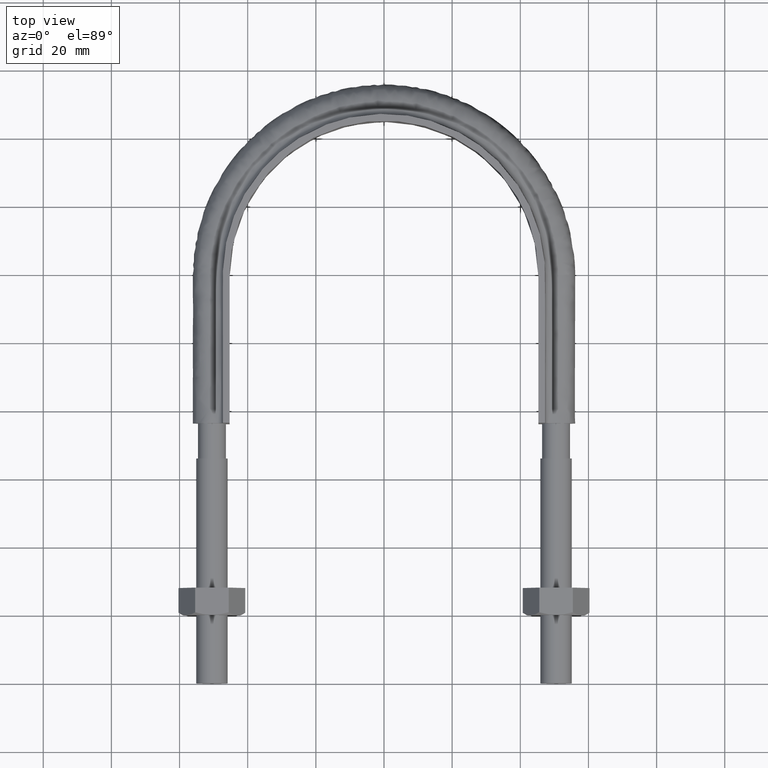
[diagram: clean part render]
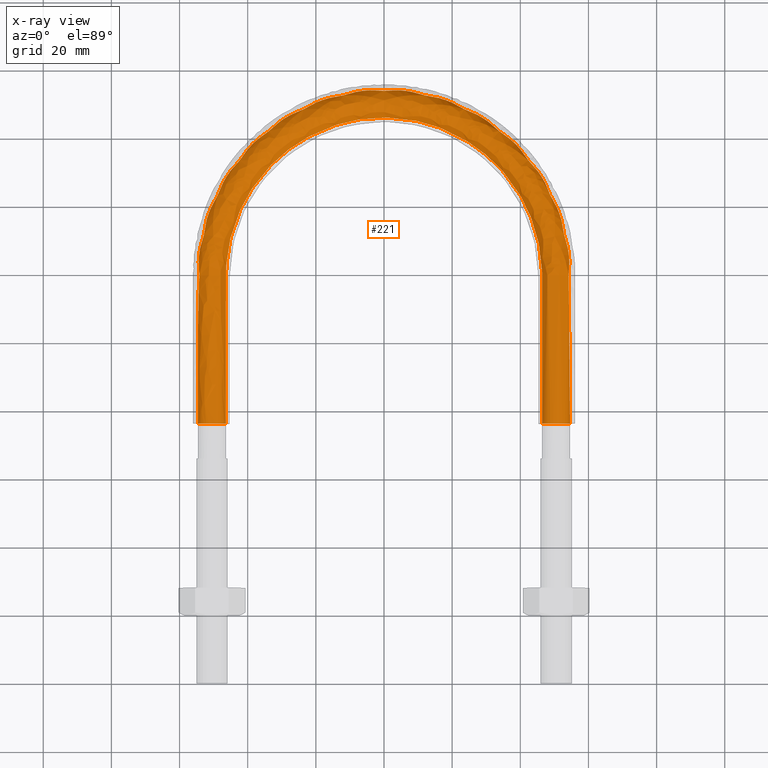
[diagram: x-ray — body ghosted, one internal face saturated and labeled with its STEP entity id]
A machine part, top view, then the same camera in x-ray: the body is ghosted and one INTERNAL B-rep face — a face not visible from any outside direction — is saturated and labeled: STEP entity #221.
In plain terms, the highlighted face is a freeform B-spline surface patch.
Its self-contained STEP definition (entity closure, byte-faithful):
#221 = ADVANCED_FACE( '', ( #302, #303 ), #304, .T. );
#302 = FACE_OUTER_BOUND( '', #474, .T. );
#303 = FACE_OUTER_BOUND( '', #475, .T. );
#304 = B_SPLINE_SURFACE_WITH_KNOTS( '', 3, 3, ( ( #476, #477, #478, #479, #480, #481, #482, #483, #484, #485, #486, #487, #488, #489, #490, #491 ), ( #492, #493, #494, #495, #496, #497, #498, #499, #500, #501, #502, #503, #504, #505, #506, #507 ), ( #508, #509, #510, #511, #512, #513, #514, #515, #516, #517, #518, #519, #520, #521, #522, #523 ), ( #524, #525, #526, #527, #528, #529, #530, #531, #532, #533, #534, #535, #536, #537, #538, #539 ), ( #540, #541, #542, #543, #544, #545, #546, #547, #548, #549, #550, #551, #552, #553, #554, #555 ), ( #556, #557, #558, #559, #560, #561, #562, #563, #564, #565, #566, #567, #568, #569, #570, #571 ), ( #572, #573, #574, #575, #576, #577, #578, #579, #580, #581, #582, #583, #584, #585, #586, #587 ), ( #588, #589, #590, #591, #592, #593, #594, #595, #596, #597, #598, #599, #600, #601, #602, #603 ), ( #604, #605, #606, #607, #608, #609, #610, #611, #612, #613, #614, #615, #616, #617, #618, #619 ), ( #620, #621, #622, #623, #624, #625, #626, #627, #628, #629, #630, #631, #632, #633, #634, #635 ) ), .UNSPECIFIED., .T., .F., .F., ( 2, 1, 1, 1, 1, 1, 1, 1, 1, 1, 1, 2 ), ( 4, 3, 1, 1, 1, 1, 1, 1, 3, 4 ), ( -0.285714285714286, -0.142857142857143, 0.000000000000000, 0.142857142857143, 0.285714285714286, 0.428571428571429, 0.571428571428571, 0.714285714285714, 0.857142857142857, 1.00000000000000, 1.14285714285714, 1.28571428571429 ), ( 0.000000000000000, 1.00000000000000, 2.00000000000000, 3.00000000000000, 4.00000000000000, 5.00000000000000, 6.00000000000000, 7.00000000000000, 8.00000000000000, 9.00000000000000 ), .UNSPECIFIED. );
#474 = EDGE_LOOP( '', ( #1470, #1471, #1472, #1473, #1474, #1475, #1476 ) );
#475 = EDGE_LOOP( '', ( #1477, #1478, #1479, #1480, #1481, #1482, #1483 ) );
#476 = CARTESIAN_POINT( '', ( 47.5768231851220, 73.1000000000000, -3.66554778583225 ) );
#477 = CARTESIAN_POINT( '', ( 47.5768231851220, 88.6333333333333, -3.66554778583225 ) );
#478 = CARTESIAN_POINT( '', ( 47.5768231851220, 104.166666666667, -3.66554778583225 ) );
#479 = CARTESIAN_POINT( '', ( 47.5768231851220, 119.700000000000, -3.66554778583225 ) );
#480 = CARTESIAN_POINT( '', ( 47.5768231851220, 126.808240896427, -3.66554778583225 ) );
#481 = CARTESIAN_POINT( '', ( 44.3285383008820, 141.051017216330, -3.66554778583224 ) );
#482 = CARTESIAN_POINT( '', ( 30.6763003101874, 158.165938031577, -3.66554778583225 ) );
#483 = CARTESIAN_POINT( '', ( 10.9482448229265, 167.667579869022, -3.66554778583225 ) );
#484 = CARTESIAN_POINT( '', ( -10.9482448229264, 167.667579869022, -3.66554778583225 ) );
#485 = CARTESIAN_POINT( '', ( -30.6763003101874, 158.165938031577, -3.66554778583225 ) );
#486 = CARTESIAN_POINT( '', ( -44.3285383008820, 141.051017216330, -3.66554778583225 ) );
#487 = CARTESIAN_POINT( '', ( -47.5768231851220, 126.808240896427, -3.66554778583225 ) );
#488 = CARTESIAN_POINT( '', ( -47.5768231851220, 119.700000000000, -3.66554778583225 ) );
#489 = CARTESIAN_POINT( '', ( -47.5768231851220, 104.166666666667, -3.66554778583225 ) );
#490 = CARTESIAN_POINT( '', ( -47.5768231851220, 88.6333333333333, -3.66554778583225 ) );
#491 = CARTESIAN_POINT( '', ( -47.5768231851220, 73.1000000000000, -3.66554778583225 ) );
#492 = CARTESIAN_POINT( '', ( 45.8115884074390, 73.1000000000000, 0.000000000000000 ) );
#493 = CARTESIAN_POINT( '', ( 45.8115884074390, 88.6333333333333, 0.000000000000000 ) );
#494 = CARTESIAN_POINT( '', ( 45.8115884074390, 104.166666666667, 0.000000000000000 ) );
#495 = CARTESIAN_POINT( '', ( 45.8115884074390, 119.700000000000, 0.000000000000000 ) );
#496 = CARTESIAN_POINT( '', ( 45.8115884074390, 126.539638683912, 0.000000000000000 ) );
#497 = CARTESIAN_POINT( '', ( 42.6838240847164, 140.261089198707, 0.000000000000000 ) );
#498 = CARTESIAN_POINT( '', ( 29.5381227579056, 156.738149417462, 0.000000000000000 ) );
#499 = CARTESIAN_POINT( '', ( 10.5420339575894, 165.887965604265, 0.000000000000000 ) );
#500 = CARTESIAN_POINT( '', ( -10.5420339575893, 165.887965604265, 0.000000000000000 ) );
#501 = CARTESIAN_POINT( '', ( -29.5381227579055, 156.738149417462, 0.000000000000000 ) );
#502 = CARTESIAN_POINT( '', ( -42.6838240847164, 140.261089198707, 0.000000000000000 ) );
#503 = CARTESIAN_POINT( '', ( -45.8115884074390, 126.539638683912, 0.000000000000000 ) );
#504 = CARTESIAN_POINT( '', ( -45.8115884074390, 119.700000000000, 0.000000000000000 ) );
#505 = CARTESIAN_POINT( '', ( -45.8115884074390, 104.166666666667, 0.000000000000000 ) );
#506 = CARTESIAN_POINT( '', ( -45.8115884074390, 88.6333333333333, 0.000000000000000 ) );
#507 = CARTESIAN_POINT( '', ( -45.8115884074390, 73.1000000000000, 0.000000000000000 ) );
#508 = CARTESIAN_POINT( '', ( 47.5768231851220, 73.1000000000000, 3.66554778583225 ) );
#509 = CARTESIAN_POINT( '', ( 47.5768231851220, 88.6333333333333, 3.66554778583225 ) );
#510 = CARTESIAN_POINT( '', ( 47.5768231851220, 104.166666666667, 3.66554778583225 ) );
#511 = CARTESIAN_POINT( '', ( 47.5768231851220, 119.700000000000, 3.66554778583225 ) );
#512 = CARTESIAN_POINT( '', ( 47.5768231851220, 126.808240896427, 3.66554778583225 ) );
#513 = CARTESIAN_POINT( '', ( 44.3285383008820, 141.051017216330, 3.66554778583224 ) );
#514 = CARTESIAN_POINT( '', ( 30.6763003101874, 158.165938031577, 3.66554778583225 ) );
#515 = CARTESIAN_POINT( '', ( 10.9482448229265, 167.667579869022, 3.66554778583225 ) );
#516 = CARTESIAN_POINT( '', ( -10.9482448229264, 167.667579869022, 3.66554778583225 ) );
#517 = CARTESIAN_POINT( '', ( -30.6763003101874, 158.165938031577, 3.66554778583225 ) );
#518 = CARTESIAN_POINT( '', ( -44.3285383008820, 141.051017216330, 3.66554778583225 ) );
#519 = CARTESIAN_POINT( '', ( -47.5768231851220, 126.808240896427, 3.66554778583225 ) );
#520 = CARTESIAN_POINT( '', ( -47.5768231851220, 119.700000000000, 3.66554778583225 ) );
#521 = CARTESIAN_POINT( '', ( -47.5768231851219, 104.166666666667, 3.66554778583225 ) );
#522 = CARTESIAN_POINT( '', ( -47.5768231851220, 88.6333333333333, 3.66554778583225 ) );
#523 = CARTESIAN_POINT( '', ( -47.5768231851220, 73.1000000000000, 3.66554778583225 ) );
#524 = CARTESIAN_POINT( '', ( 51.5432697263483, 73.1000000000000, 4.57086332538454 ) );
#525 = CARTESIAN_POINT( '', ( 51.5432697263483, 88.6333333333333, 4.57086332538454 ) );
#526 = CARTESIAN_POINT( '', ( 51.5432697263483, 104.166666666667, 4.57086332538454 ) );
#527 = CARTESIAN_POINT( '', ( 51.5432697263483, 119.700000000000, 4.57086332538454 ) );
#528 = CARTESIAN_POINT( '', ( 51.5432697263483, 127.411784589462, 4.57086332538454 ) );
#529 = CARTESIAN_POINT( '', ( 48.0241775985503, 142.825969360335, 4.57086332538453 ) );
#530 = CARTESIAN_POINT( '', ( 33.2337620555738, 161.374149925913, 4.57086332538454 ) );
#531 = CARTESIAN_POINT( '', ( 11.8609923521473, 171.666336824417, 4.57086332538454 ) );
#532 = CARTESIAN_POINT( '', ( -11.8609923521472, 171.666336824417, 4.57086332538454 ) );
#533 = CARTESIAN_POINT( '', ( -33.2337620555738, 161.374149925913, 4.57086332538454 ) );
#534 = CARTESIAN_POINT( '', ( -48.0241775985503, 142.825969360335, 4.57086332538453 ) );
#535 = CARTESIAN_POINT( '', ( -51.5432697263483, 127.411784589462, 4.57086332538454 ) );
#536 = CARTESIAN_POINT( '', ( -51.5432697263483, 119.700000000000, 4.57086332538454 ) );
#537 = CARTESIAN_POINT( '', ( -51.5432697263483, 104.166666666667, 4.57086332538454 ) );
#538 = CARTESIAN_POINT( '', ( -51.5432697263483, 88.6333333333333, 4.57086332538454 ) );
#539 = CARTESIAN_POINT( '', ( -51.5432697263483, 73.1000000000000, 4.57086332538454 ) );
#540 = CARTESIAN_POINT( '', ( 54.7241128848103, 73.1000000000000, 2.03422555230246 ) );
#541 = CARTESIAN_POINT( '', ( 54.7241128848103, 88.6333333333333, 2.03422555230246 ) );
#542 = CARTESIAN_POINT( '', ( 54.7241128848103, 104.166666666667, 2.03422555230246 ) );
#543 = CARTESIAN_POINT( '', ( 54.7241128848103, 119.700000000000, 2.03422555230246 ) );
#544 = CARTESIAN_POINT( '', ( 54.7241128848103, 127.895789052114, 2.03422555230246 ) );
#545 = CARTESIAN_POINT( '', ( 50.9878502092738, 144.249370463859, 2.03422555230246 ) );
#546 = CARTESIAN_POINT( '', ( 35.2846871370765, 163.946936108439, 2.03422555230247 ) );
#547 = CARTESIAN_POINT( '', ( 12.5929590390921, 174.873090923261, 2.03422555230247 ) );
#548 = CARTESIAN_POINT( '', ( -12.5929590390920, 174.873090923261, 2.03422555230246 ) );
#549 = CARTESIAN_POINT( '', ( -35.2846871370765, 163.946936108438, 2.03422555230246 ) );
#550 = CARTESIAN_POINT( '', ( -50.9878502092738, 144.249370463859, 2.03422555230246 ) );
#551 = CARTESIAN_POINT( '', ( -54.7241128848102, 127.895789052114, 2.03422555230246 ) );
#552 = CARTESIAN_POINT( '', ( -54.7241128848102, 119.700000000000, 2.03422555230246 ) );
#553 = CARTESIAN_POINT( '', ( -54.7241128848102, 104.166666666667, 2.03422555230246 ) );
#554 = CARTESIAN_POINT( '', ( -54.7241128848102, 88.6333333333333, 2.03422555230246 ) );
#555 = CARTESIAN_POINT( '', ( -54.7241128848102, 73.1000000000000, 2.03422555230246 ) );
#556 = CARTESIAN_POINT( '', ( 54.7241128848103, 73.1000000000000, -2.03422555230246 ) );
#557 = CARTESIAN_POINT( '', ( 54.7241128848103, 88.6333333333333, -2.03422555230246 ) );
#558 = CARTESIAN_POINT( '', ( 54.7241128848103, 104.166666666667, -2.03422555230246 ) );
#559 = CARTESIAN_POINT( '', ( 54.7241128848103, 119.700000000000, -2.03422555230246 ) );
#560 = CARTESIAN_POINT( '', ( 54.7241128848103, 127.895789052114, -2.03422555230246 ) );
#561 = CARTESIAN_POINT( '', ( 50.9878502092738, 144.249370463859, -2.03422555230246 ) );
#562 = CARTESIAN_POINT( '', ( 35.2846871370765, 163.946936108439, -2.03422555230246 ) );
#563 = CARTESIAN_POINT( '', ( 12.5929590390921, 174.873090923261, -2.03422555230246 ) );
#564 = CARTESIAN_POINT( '', ( -12.5929590390920, 174.873090923261, -2.03422555230246 ) );
#565 = CARTESIAN_POINT( '', ( -35.2846871370765, 163.946936108438, -2.03422555230246 ) );
#566 = CARTESIAN_POINT( '', ( -50.9878502092738, 144.249370463859, -2.03422555230246 ) );
#567 = CARTESIAN_POINT( '', ( -54.7241128848102, 127.895789052114, -2.03422555230246 ) );
#568 = CARTESIAN_POINT( '', ( -54.7241128848102, 119.700000000000, -2.03422555230246 ) );
#569 = CARTESIAN_POINT( '', ( -54.7241128848102, 104.166666666667, -2.03422555230246 ) );
#570 = CARTESIAN_POINT( '', ( -54.7241128848102, 88.6333333333333, -2.03422555230246 ) );
#571 = CARTESIAN_POINT( '', ( -54.7241128848102, 73.1000000000000, -2.03422555230246 ) );
#572 = CARTESIAN_POINT( '', ( 51.5432697263483, 73.1000000000000, -4.57086332538454 ) );
#573 = CARTESIAN_POINT( '', ( 51.5432697263483, 88.6333333333333, -4.57086332538454 ) );
#574 = CARTESIAN_POINT( '', ( 51.5432697263483, 104.166666666667, -4.57086332538454 ) );
#575 = CARTESIAN_POINT( '', ( 51.5432697263483, 119.700000000000, -4.57086332538454 ) );
#576 = CARTESIAN_POINT( '', ( 51.5432697263483, 127.411784589462, -4.57086332538454 ) );
#577 = CARTESIAN_POINT( '', ( 48.0241775985503, 142.825969360335, -4.57086332538453 ) );
#578 = CARTESIAN_POINT( '', ( 33.2337620555738, 161.374149925913, -4.57086332538454 ) );
#579 = CARTESIAN_POINT( '', ( 11.8609923521473, 171.666336824417, -4.57086332538454 ) );
#580 = CARTESIAN_POINT( '', ( -11.8609923521472, 171.666336824417, -4.57086332538454 ) );
#581 = CARTESIAN_POINT( '', ( -33.2337620555738, 161.374149925913, -4.57086332538454 ) );
#582 = CARTESIAN_POINT( '', ( -48.0241775985503, 142.825969360335, -4.57086332538453 ) );
#583 = CARTESIAN_POINT( '', ( -51.5432697263483, 127.411784589462, -4.57086332538454 ) );
#584 = CARTESIAN_POINT( '', ( -51.5432697263483, 119.700000000000, -4.57086332538454 ) );
#585 = CARTESIAN_POINT( '', ( -51.5432697263483, 104.166666666667, -4.57086332538454 ) );
#586 = CARTESIAN_POINT( '', ( -51.5432697263483, 88.6333333333333, -4.57086332538454 ) );
#587 = CARTESIAN_POINT( '', ( -51.5432697263483, 73.1000000000000, -4.57086332538454 ) );
#588 = CARTESIAN_POINT( '', ( 47.5768231851220, 73.1000000000000, -3.66554778583225 ) );
#589 = CARTESIAN_POINT( '', ( 47.5768231851220, 88.6333333333333, -3.66554778583225 ) );
#590 = CARTESIAN_POINT( '', ( 47.5768231851220, 104.166666666667, -3.66554778583225 ) );
#591 = CARTESIAN_POINT( '', ( 47.5768231851220, 119.700000000000, -3.66554778583225 ) );
#592 = CARTESIAN_POINT( '', ( 47.5768231851220, 126.808240896427, -3.66554778583225 ) );
#593 = CARTESIAN_POINT( '', ( 44.3285383008820, 141.051017216330, -3.66554778583224 ) );
#594 = CARTESIAN_POINT( '', ( 30.6763003101874, 158.165938031577, -3.66554778583225 ) );
#595 = CARTESIAN_POINT( '', ( 10.9482448229265, 167.667579869022, -3.66554778583225 ) );
#596 = CARTESIAN_POINT( '', ( -10.9482448229264, 167.667579869022, -3.66554778583225 ) );
#597 = CARTESIAN_POINT( '', ( -30.6763003101874, 158.165938031577, -3.66554778583225 ) );
#598 = CARTESIAN_POINT( '', ( -44.3285383008820, 141.051017216330, -3.66554778583225 ) );
#599 = CARTESIAN_POINT( '', ( -47.5768231851220, 126.808240896427, -3.66554778583225 ) );
#600 = CARTESIAN_POINT( '', ( -47.5768231851220, 119.700000000000, -3.66554778583225 ) );
#601 = CARTESIAN_POINT( '', ( -47.5768231851220, 104.166666666667, -3.66554778583225 ) );
#602 = CARTESIAN_POINT( '', ( -47.5768231851220, 88.6333333333333, -3.66554778583225 ) );
#603 = CARTESIAN_POINT( '', ( -47.5768231851220, 73.1000000000000, -3.66554778583225 ) );
#604 = CARTESIAN_POINT( '', ( 45.8115884074390, 73.1000000000000, 0.000000000000000 ) );
#605 = CARTESIAN_POINT( '', ( 45.8115884074390, 88.6333333333333, 0.000000000000000 ) );
#606 = CARTESIAN_POINT( '', ( 45.8115884074390, 104.166666666667, 0.000000000000000 ) );
#607 = CARTESIAN_POINT( '', ( 45.8115884074390, 119.700000000000, 0.000000000000000 ) );
#608 = CARTESIAN_POINT( '', ( 45.8115884074390, 126.539638683912, 0.000000000000000 ) );
#609 = CARTESIAN_POINT( '', ( 42.6838240847164, 140.261089198707, 0.000000000000000 ) );
#610 = CARTESIAN_POINT( '', ( 29.5381227579056, 156.738149417462, 0.000000000000000 ) );
#611 = CARTESIAN_POINT( '', ( 10.5420339575894, 165.887965604265, 0.000000000000000 ) );
#612 = CARTESIAN_POINT( '', ( -10.5420339575893, 165.887965604265, 0.000000000000000 ) );
#613 = CARTESIAN_POINT( '', ( -29.5381227579055, 156.738149417462, 0.000000000000000 ) );
#614 = CARTESIAN_POINT( '', ( -42.6838240847164, 140.261089198707, 0.000000000000000 ) );
#615 = CARTESIAN_POINT( '', ( -45.8115884074390, 126.539638683912, 0.000000000000000 ) );
#616 = CARTESIAN_POINT( '', ( -45.8115884074390, 119.700000000000, 0.000000000000000 ) );
#617 = CARTESIAN_POINT( '', ( -45.8115884074390, 104.166666666667, 0.000000000000000 ) );
#618 = CARTESIAN_POINT( '', ( -45.8115884074390, 88.6333333333333, 0.000000000000000 ) );
#619 = CARTESIAN_POINT( '', ( -45.8115884074390, 73.1000000000000, 0.000000000000000 ) );
#620 = CARTESIAN_POINT( '', ( 47.5768231851220, 73.1000000000000, 3.66554778583225 ) );
#621 = CARTESIAN_POINT( '', ( 47.5768231851220, 88.6333333333333, 3.66554778583225 ) );
#622 = CARTESIAN_POINT( '', ( 47.5768231851220, 104.166666666667, 3.66554778583225 ) );
#623 = CARTESIAN_POINT( '', ( 47.5768231851220, 119.700000000000, 3.66554778583225 ) );
#624 = CARTESIAN_POINT( '', ( 47.5768231851220, 126.808240896427, 3.66554778583225 ) );
#625 = CARTESIAN_POINT( '', ( 44.3285383008820, 141.051017216330, 3.66554778583224 ) );
#626 = CARTESIAN_POINT( '', ( 30.6763003101874, 158.165938031577, 3.66554778583225 ) );
#627 = CARTESIAN_POINT( '', ( 10.9482448229265, 167.667579869022, 3.66554778583225 ) );
#628 = CARTESIAN_POINT( '', ( -10.9482448229264, 167.667579869022, 3.66554778583225 ) );
#629 = CARTESIAN_POINT( '', ( -30.6763003101874, 158.165938031577, 3.66554778583225 ) );
#630 = CARTESIAN_POINT( '', ( -44.3285383008820, 141.051017216330, 3.66554778583225 ) );
#631 = CARTESIAN_POINT( '', ( -47.5768231851220, 126.808240896427, 3.66554778583225 ) );
#632 = CARTESIAN_POINT( '', ( -47.5768231851220, 119.700000000000, 3.66554778583225 ) );
#633 = CARTESIAN_POINT( '', ( -47.5768231851219, 104.166666666667, 3.66554778583225 ) );
#634 = CARTESIAN_POINT( '', ( -47.5768231851220, 88.6333333333333, 3.66554778583225 ) );
#635 = CARTESIAN_POINT( '', ( -47.5768231851220, 73.1000000000000, 3.66554778583225 ) );
#1470 = ORIENTED_EDGE( '', *, *, #2001, .T. );
#1471 = ORIENTED_EDGE( '', *, *, #2002, .T. );
#1472 = ORIENTED_EDGE( '', *, *, #2003, .T. );
#1473 = ORIENTED_EDGE( '', *, *, #2004, .T. );
#1474 = ORIENTED_EDGE( '', *, *, #2005, .T. );
#1475 = ORIENTED_EDGE( '', *, *, #2006, .T. );
#1476 = ORIENTED_EDGE( '', *, *, #2007, .T. );
#1477 = ORIENTED_EDGE( '', *, *, #2008, .T. );
#1478 = ORIENTED_EDGE( '', *, *, #2009, .T. );
#1479 = ORIENTED_EDGE( '', *, *, #2010, .T. );
#1480 = ORIENTED_EDGE( '', *, *, #2011, .T. );
#1481 = ORIENTED_EDGE( '', *, *, #2012, .T. );
#1482 = ORIENTED_EDGE( '', *, *, #2013, .T. );
#1483 = ORIENTED_EDGE( '', *, *, #2014, .T. );
#2001 = EDGE_CURVE( '', #2143, #2154, #2163, .T. );
#2002 = EDGE_CURVE( '', #2154, #2152, #2164, .T. );
#2003 = EDGE_CURVE( '', #2152, #2150, #2165, .T. );
#2004 = EDGE_CURVE( '', #2150, #2148, #2166, .T. );
#2005 = EDGE_CURVE( '', #2148, #2146, #2167, .T. );
#2006 = EDGE_CURVE( '', #2146, #2144, #2168, .T. );
#2007 = EDGE_CURVE( '', #2144, #2143, #2169, .T. );
#2008 = EDGE_CURVE( '', #2170, #2171, #2172, .T. );
#2009 = EDGE_CURVE( '', #2171, #2173, #2174, .T. );
#2010 = EDGE_CURVE( '', #2173, #2175, #2176, .T. );
#2011 = EDGE_CURVE( '', #2175, #2177, #2178, .T. );
#2012 = EDGE_CURVE( '', #2177, #2179, #2180, .T. );
#2013 = EDGE_CURVE( '', #2179, #2181, #2182, .T. );
#2014 = EDGE_CURVE( '', #2181, #2170, #2183, .T. );
#2143 = VERTEX_POINT( '', #2393 );
#2144 = VERTEX_POINT( '', #2394 );
#2146 = VERTEX_POINT( '', #2396 );
#2148 = VERTEX_POINT( '', #2398 );
#2150 = VERTEX_POINT( '', #2400 );
#2152 = VERTEX_POINT( '', #2402 );
#2154 = VERTEX_POINT( '', #2404 );
#2163 = B_SPLINE_CURVE_WITH_KNOTS( '', 3, ( #2413, #2414, #2415, #2416 ), .UNSPECIFIED., .F., .F., ( 4, 4 ), ( 5.20417042793042E-017, 0.00365969768494583 ), .UNSPECIFIED. );
#2164 = B_SPLINE_CURVE_WITH_KNOTS( '', 3, ( #2417, #2418, #2419, #2420 ), .UNSPECIFIED., .F., .F., ( 4, 4 ), ( 0.00365969768494583, 0.00731437302338643 ), .UNSPECIFIED. );
#2165 = B_SPLINE_CURVE_WITH_KNOTS( '', 3, ( #2421, #2422, #2423, #2424 ), .UNSPECIFIED., .F., .F., ( 4, 4 ), ( 0.00731437302338643, 0.0109748044148777 ), .UNSPECIFIED. );
#2166 = B_SPLINE_CURVE_WITH_KNOTS( '', 3, ( #2425, #2426, #2427, #2428 ), .UNSPECIFIED., .F., .F., ( 4, 4 ), ( 0.0109748044148777, 0.0146317467085364 ), .UNSPECIFIED. );
#2167 = B_SPLINE_CURVE_WITH_KNOTS( '', 3, ( #2429, #2430, #2431, #2432 ), .UNSPECIFIED., .F., .F., ( 4, 4 ), ( 0.0146317467085364, 0.0182856759681197 ), .UNSPECIFIED. );
#2168 = B_SPLINE_CURVE_WITH_KNOTS( '', 3, ( #2433, #2434, #2435, #2436 ), .UNSPECIFIED., .F., .F., ( 4, 4 ), ( 0.0182856759681197, 0.0219456464543608 ), .UNSPECIFIED. );
#2169 = B_SPLINE_CURVE_WITH_KNOTS( '', 3, ( #2437, #2438, #2439, #2440 ), .UNSPECIFIED., .F., .F., ( 4, 4 ), ( 0.0219456464543608, 0.0255944202292314 ), .UNSPECIFIED. );
#2170 = VERTEX_POINT( '', #2441 );
#2171 = VERTEX_POINT( '', #2442 );
#2172 = B_SPLINE_CURVE_WITH_KNOTS( '', 3, ( #2443, #2444, #2445, #2446 ), .UNSPECIFIED., .F., .F., ( 4, 4 ), ( 0.000000000000000, 0.00365969768494538 ), .UNSPECIFIED. );
#2173 = VERTEX_POINT( '', #2447 );
#2174 = B_SPLINE_CURVE_WITH_KNOTS( '', 3, ( #2448, #2449, #2450, #2451 ), .UNSPECIFIED., .F., .F., ( 4, 4 ), ( 0.00365969768494538, 0.00731437302338642 ), .UNSPECIFIED. );
#2175 = VERTEX_POINT( '', #2452 );
#2176 = B_SPLINE_CURVE_WITH_KNOTS( '', 3, ( #2453, #2454, #2455, #2456 ), .UNSPECIFIED., .F., .F., ( 4, 4 ), ( 0.00731437302338642, 0.0109748044148778 ), .UNSPECIFIED. );
#2177 = VERTEX_POINT( '', #2457 );
#2178 = B_SPLINE_CURVE_WITH_KNOTS( '', 3, ( #2458, #2459, #2460, #2461 ), .UNSPECIFIED., .F., .F., ( 4, 4 ), ( 0.0109748044148778, 0.0146317467085374 ), .UNSPECIFIED. );
#2179 = VERTEX_POINT( '', #2462 );
#2180 = B_SPLINE_CURVE_WITH_KNOTS( '', 3, ( #2463, #2464, #2465, #2466 ), .UNSPECIFIED., .F., .F., ( 4, 4 ), ( 0.0146317467085374, 0.0182856759681444 ), .UNSPECIFIED. );
#2181 = VERTEX_POINT( '', #2467 );
#2182 = B_SPLINE_CURVE_WITH_KNOTS( '', 3, ( #2468, #2469, #2470, #2471 ), .UNSPECIFIED., .F., .F., ( 4, 4 ), ( 0.0182856759681444, 0.0219456464543864 ), .UNSPECIFIED. );
#2183 = B_SPLINE_CURVE_WITH_KNOTS( '', 3, ( #2472, #2473, #2474, #2475 ), .UNSPECIFIED., .F., .F., ( 4, 4 ), ( 0.0219456464543864, 0.0255944202292315 ), .UNSPECIFIED. );
#2393 = CARTESIAN_POINT( '', ( -46.4000000000000, 76.3000000000000, 5.26579952126469E-014 ) );
#2394 = CARTESIAN_POINT( '', ( -47.9436918123994, 76.3000000000000, 3.20550907813503 ) );
#2396 = CARTESIAN_POINT( '', ( -51.4123358292446, 76.3000000000000, 3.99720443994006 ) );
#2398 = CARTESIAN_POINT( '', ( -54.1939723584001, 76.3000000000000, 1.77892333038152 ) );
#2400 = CARTESIAN_POINT( '', ( -54.1939723583999, 76.3000000000000, -1.77892333038199 ) );
#2402 = CARTESIAN_POINT( '', ( -51.4123358292208, 76.3000000000000, -3.99720443994549 ) );
#2404 = CARTESIAN_POINT( '', ( -47.9436918123793, 76.3000000000000, -3.20550907811901 ) );
#2413 = CARTESIAN_POINT( '', ( -46.4000000000000, 76.3000000000000, -4.92227786308419E-014 ) );
#2414 = CARTESIAN_POINT( '', ( -46.4000000000000, 76.3000000000000, -1.22184926194415 ) );
#2415 = CARTESIAN_POINT( '', ( -46.9884115925610, 76.3000000000000, -2.44369852388826 ) );
#2416 = CARTESIAN_POINT( '', ( -47.9436918123793, 76.3000000000000, -3.20550907811901 ) );
#2417 = CARTESIAN_POINT( '', ( -47.9436918123793, 76.3000000000000, -3.20550907811899 ) );
#2418 = CARTESIAN_POINT( '', ( -48.8989720321975, 76.3000000000000, -3.96731963234968 ) );
#2419 = CARTESIAN_POINT( '', ( -50.2211208792728, 76.3000000000000, -4.26909147886709 ) );
#2420 = CARTESIAN_POINT( '', ( -51.4123358292208, 76.3000000000000, -3.99720443994549 ) );
#2421 = CARTESIAN_POINT( '', ( -51.4123358292208, 76.3000000000001, -3.99720443994549 ) );
#2422 = CARTESIAN_POINT( '', ( -52.6035507791689, 76.3000000000001, -3.72531740102388 ) );
#2423 = CARTESIAN_POINT( '', ( -53.6638318319896, 76.3000000000001, -2.87977147666317 ) );
#2424 = CARTESIAN_POINT( '', ( -54.1939723583999, 76.3000000000001, -1.77892333038198 ) );
#2425 = CARTESIAN_POINT( '', ( -54.1939723583998, 76.3000000000001, -1.77892333038215 ) );
#2426 = CARTESIAN_POINT( '', ( -54.7241128848102, 76.3000000000001, -0.678075184101072 ) );
#2427 = CARTESIAN_POINT( '', ( -54.7241128848102, 76.3000000000001, 0.678075184100430 ) );
#2428 = CARTESIAN_POINT( '', ( -54.1939723584001, 76.3000000000001, 1.77892333038151 ) );
#2429 = CARTESIAN_POINT( '', ( -54.1939723584037, 76.3000000000000, 1.77892333037346 ) );
#2430 = CARTESIAN_POINT( '', ( -53.6638318319969, 76.3000000000000, 2.87977147665280 ) );
#2431 = CARTESIAN_POINT( '', ( -52.6035507791832, 76.3000000000000, 3.72531740101259 ) );
#2432 = CARTESIAN_POINT( '', ( -51.4123358292446, 76.3000000000000, 3.99720443994007 ) );
#2433 = CARTESIAN_POINT( '', ( -51.4123358292536, 76.3000000000001, 3.99720443993766 ) );
#2434 = CARTESIAN_POINT( '', ( -50.2211208793034, 76.3000000000001, 4.26909147887026 ) );
#2435 = CARTESIAN_POINT( '', ( -48.8989720322224, 76.3000000000001, 3.96731963235898 ) );
#2436 = CARTESIAN_POINT( '', ( -47.9436918123994, 76.3000000000001, 3.20550907813503 ) );
#2437 = CARTESIAN_POINT( '', ( -47.9436918123994, 76.3000000000001, 3.20550907813503 ) );
#2438 = CARTESIAN_POINT( '', ( -46.9884115925693, 76.3000000000001, 2.44369852390539 ) );
#2439 = CARTESIAN_POINT( '', ( -46.4000000000000, 76.3000000000001, 1.22184926195269 ) );
#2440 = CARTESIAN_POINT( '', ( -46.4000000000000, 76.3000000000001, 4.33680868994202E-016 ) );
#2441 = CARTESIAN_POINT( '', ( 46.4000000000000, 76.3000000000000, 4.33680868994202E-016 ) );
#2442 = CARTESIAN_POINT( '', ( 47.9436918123790, 76.3000000000000, 3.20550907811873 ) );
#2443 = CARTESIAN_POINT( '', ( 46.4000000000000, 76.3000000000000, 4.33680868994202E-016 ) );
#2444 = CARTESIAN_POINT( '', ( 46.4000000000000, 76.3000000000000, 1.22184926194398 ) );
#2445 = CARTESIAN_POINT( '', ( 46.9884115925609, 76.3000000000000, 2.44369852388796 ) );
#2446 = CARTESIAN_POINT( '', ( 47.9436918123790, 76.3000000000000, 3.20550907811873 ) );
#2447 = CARTESIAN_POINT( '', ( 51.4123358292208, 76.3000000000000, 3.99720443994551 ) );
#2448 = CARTESIAN_POINT( '', ( 47.9436918123790, 76.3000000000000, 3.20550907811873 ) );
#2449 = CARTESIAN_POINT( '', ( 48.8989720321972, 76.3000000000000, 3.96731963234960 ) );
#2450 = CARTESIAN_POINT( '', ( 50.2211208792726, 76.3000000000000, 4.26909147886710 ) );
#2451 = CARTESIAN_POINT( '', ( 51.4123358292207, 76.3000000000000, 3.99720443994553 ) );
#2452 = CARTESIAN_POINT( '', ( 54.1939723583999, 76.3000000000000, 1.77892333038198 ) );
#2453 = CARTESIAN_POINT( '', ( 51.4123358292208, 76.3000000000000, 3.99720443994550 ) );
#2454 = CARTESIAN_POINT( '', ( 52.6035507791689, 76.3000000000000, 3.72531740102390 ) );
#2455 = CARTESIAN_POINT( '', ( 53.6638318319896, 76.3000000000000, 2.87977147666319 ) );
#2456 = CARTESIAN_POINT( '', ( 54.1939723583999, 76.3000000000000, 1.77892333038201 ) );
#2457 = CARTESIAN_POINT( '', ( 54.1939723583998, 76.3000000000000, -1.77892333038233 ) );
#2458 = CARTESIAN_POINT( '', ( 54.1939723583999, 76.3000000000000, 1.77892333038197 ) );
#2459 = CARTESIAN_POINT( '', ( 54.7241128848103, 76.3000000000000, 0.678075184100695 ) );
#2460 = CARTESIAN_POINT( '', ( 54.7241128848103, 76.3000000000000, -0.678075184101106 ) );
#2461 = CARTESIAN_POINT( '', ( 54.1939723583998, 76.3000000000000, -1.77892333038233 ) );
#2462 = CARTESIAN_POINT( '', ( 51.4123358292205, 76.3000000000000, -3.99720443994556 ) );
#2463 = CARTESIAN_POINT( '', ( 54.1939723583998, 76.3000000000000, -1.77892333038232 ) );
#2464 = CARTESIAN_POINT( '', ( 53.6638318319893, 76.3000000000000, -2.87977147666344 ) );
#2465 = CARTESIAN_POINT( '', ( 52.6035507791686, 76.3000000000000, -3.72531740102410 ) );
#2466 = CARTESIAN_POINT( '', ( 51.4123358292204, 76.3000000000000, -3.99720443994559 ) );
#2467 = CARTESIAN_POINT( '', ( 47.9436918123792, 76.3000000000000, -3.20550907811892 ) );
#2468 = CARTESIAN_POINT( '', ( 51.4123358292205, 76.3000000000000, -3.99720443994556 ) );
#2469 = CARTESIAN_POINT( '', ( 50.2211208792726, 76.3000000000000, -4.26909147886704 ) );
#2470 = CARTESIAN_POINT( '', ( 48.8989720321973, 76.3000000000000, -3.96731963234958 ) );
#2471 = CARTESIAN_POINT( '', ( 47.9436918123791, 76.3000000000000, -3.20550907811884 ) );
#2472 = CARTESIAN_POINT( '', ( 47.9436918123792, 76.3000000000000, -3.20550907811893 ) );
#2473 = CARTESIAN_POINT( '', ( 46.9884115925610, 76.3000000000000, -2.44369852388817 ) );
#2474 = CARTESIAN_POINT( '', ( 46.4000000000000, 76.3000000000000, -1.22184926194409 ) );
#2475 = CARTESIAN_POINT( '', ( 46.4000000000000, 76.3000000000000, -2.92734586571086E-015 ) );